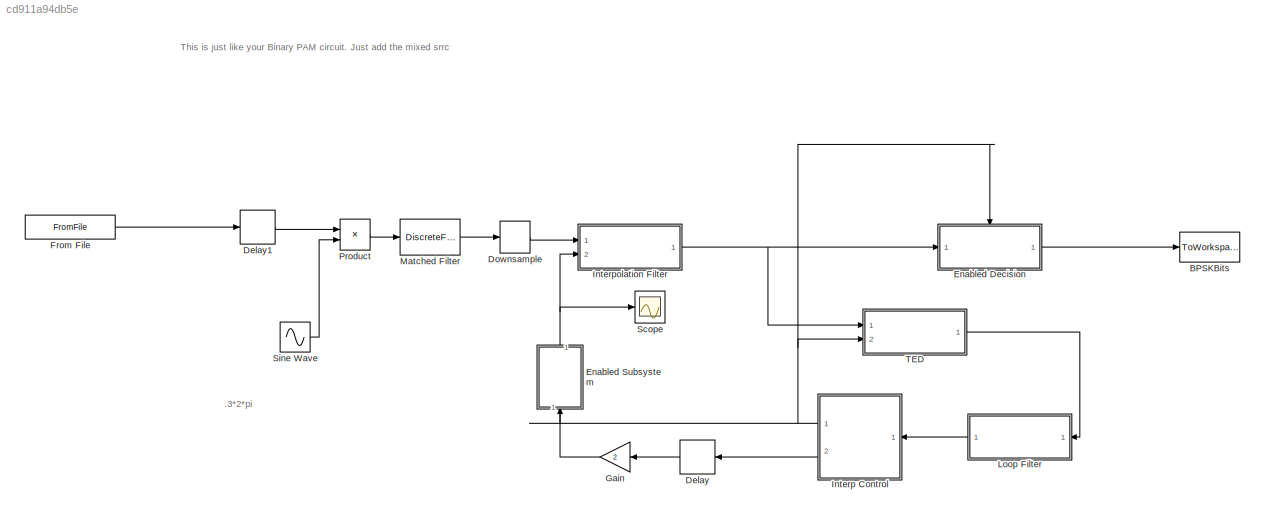
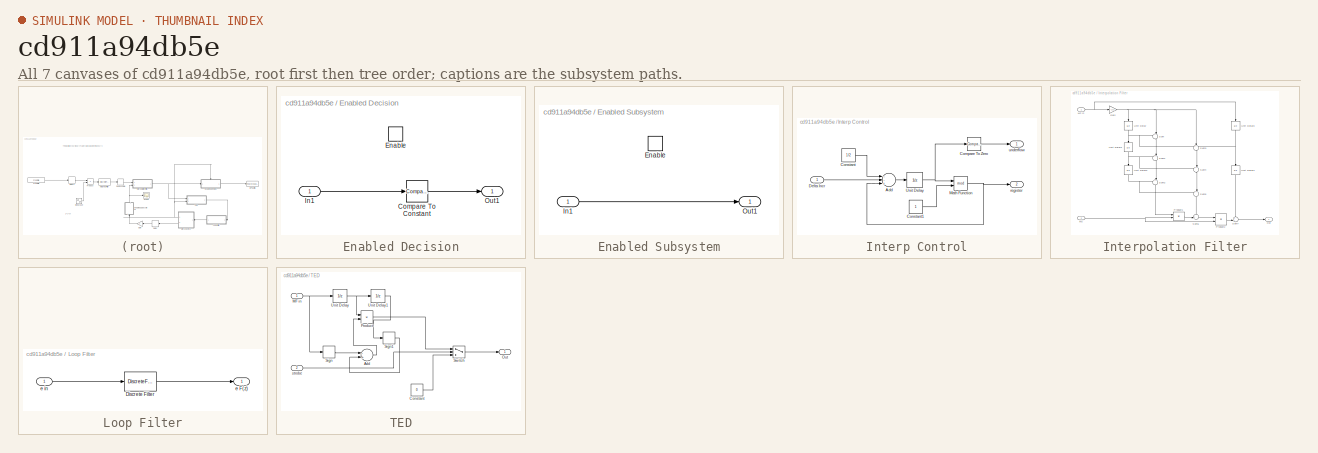
[diagram: thumbnail index - all 7 canvases of the model, root first then tree order]
MODEL slx_cd911a94db5e
KIND model
CONFIG AbsTol = auto
CONFIG FixedStep = auto
CONFIG MaxStep = auto
CONFIG MinStep = auto
CONFIG RelTol = 1e-3
CONFIG SampleTimeConstraint = Unconstrained
CONFIG Solver = VariableStepAuto
CONFIG SolverMode = Auto
CONFIG SolverName = VariableStepAuto
CONFIG StartTime = 0.0
CONFIG StopTime = (12+256+8+784)*8\n
BLOCK [ToWorkspace] BPSKBits 
  Decimation = 2
  MaxDataPoints = inf
  Ports = [1]
  SampleTime = -1
  VariableName = BPSKbits
BLOCK [Delay] Delay
  DelayLength = 1
  InputPortMap = u0
  Ports = [1, 1]
BLOCK [Delay] Delay1
  DelayLength = 0
  InputPortMap = u0
  Ports = [1, 1]
BLOCK [DownSample] Downsample
  InputProcessing = Elements as channels (sample based)
  N = 8/2
  RateOptions = Allow multirate processing
BLOCK [SubSystem] Enabled Decision
  Ports = [1, 1, 1]
  RequestExecContextInheritance = off
  TreatAsAtomicUnit = on
  Variant = off
BLOCK [Reference] Enabled Decision/Compare To Constant  REF=simulink/Logic and Bit
Operations/Compare
To Constant
  Ports = [1, 1]
  SourceBlock = simulink/Logic and Bit\nOperations/Compare\nTo Constant
  SourceType = Compare To Constant
BLOCK [EnablePort] Enabled Decision/Enable
  Ports = []
BLOCK [Inport] Enabled Decision/In1
  IconDisplay = Port number
BLOCK [Outport] Enabled Decision/Out1
  IconDisplay = Port number
BLOCK [SubSystem] Enabled Subsystem
  Ports = [1, 1, 1]
  RequestExecContextInheritance = off
  TreatAsAtomicUnit = on
  Variant = off
BLOCK [EnablePort] Enabled Subsystem/Enable
  Ports = []
BLOCK [Inport] Enabled Subsystem/In1
  IconDisplay = Port number
BLOCK [Outport] Enabled Subsystem/Out1
  IconDisplay = Port number
BLOCK [FromFile] From File
  FileName = bpsktrdata.mat
  SampleTime = 1
BLOCK [Gain] Gain
  Gain = 2
  OutDataTypeStr = Inherit: Inherit via internal rule
  ParamDataTypeStr = Inherit: Inherit via internal rule
  SaturateOnIntegerOverflow = off
BLOCK [SubSystem] Interp Control
  Ports = [1, 2]
  RequestExecContextInheritance = off
  Variant = off
BLOCK [Sum] Interp Control/Add
  InputSameDT = off
  Inputs = --+
  OutDataTypeStr = Inherit: Inherit via internal rule
  Ports = [3, 1]
  SaturateOnIntegerOverflow = off
BLOCK [Reference] Interp Control/Compare To Zero  REF=simulink/Logic and Bit
Operations/Compare
To Zero
  Ports = [1, 1]
  SourceBlock = simulink/Logic and Bit\nOperations/Compare\nTo Zero
  SourceType = Compare To Zero
BLOCK [Constant] Interp Control/Constant
  Value = 1/2
BLOCK [Constant] Interp Control/Constant1
BLOCK [Inport] Interp Control/Delta Incr
  IconDisplay = Port number
BLOCK [Math] Interp Control/Math Function
  Operator = mod
  Ports = [2, 1]
BLOCK [UnitDelay] Interp Control/Unit Delay
  InputProcessing = Elements as channels (sample based)
  SampleTime = -1
BLOCK [Outport] Interp Control/register
  IconDisplay = Port number
  Port = 2
BLOCK [Outport] Interp Control/underflow
  IconDisplay = Port number
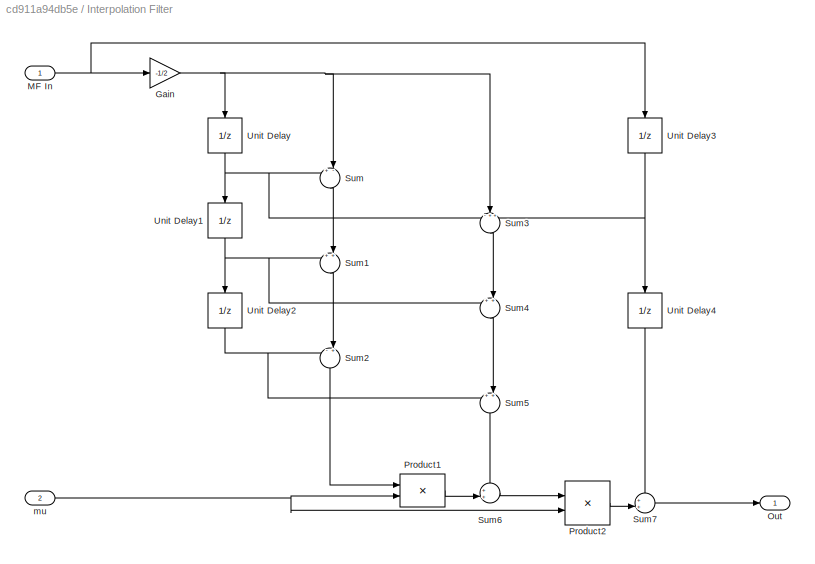
BLOCK [SubSystem] Interpolation Filter
  Ports = [2, 1]
  RequestExecContextInheritance = off
  Variant = off
BLOCK [Gain] Interpolation Filter/Gain
  Gain = -1/2
  OutDataTypeStr = Inherit: Inherit via internal rule
  ParamDataTypeStr = Inherit: Inherit via internal rule
  SaturateOnIntegerOverflow = off
BLOCK [Inport] Interpolation Filter/MF In
  IconDisplay = Port number
BLOCK [Outport] Interpolation Filter/Out
  IconDisplay = Port number
BLOCK [Product] Interpolation Filter/Product1
  Ports = [2, 1]
  RndMeth = Floor
BLOCK [Product] Interpolation Filter/Product2
  Ports = [2, 1]
  RndMeth = Floor
BLOCK [Sum] Interpolation Filter/Sum
  IconShape = round
  Inputs = +-|
  Ports = [2, 1]
BLOCK [Sum] Interpolation Filter/Sum1
  IconShape = round
  Inputs = ++|
  Ports = [2, 1]
BLOCK [Sum] Interpolation Filter/Sum2
  IconShape = round
  Inputs = -+|
  Ports = [2, 1]
BLOCK [Sum] Interpolation Filter/Sum3
  IconShape = round
  Inputs = -++
  Ports = [3, 1]
BLOCK [Sum] Interpolation Filter/Sum4
  IconShape = round
  Inputs = ++|
  Ports = [2, 1]
BLOCK [Sum] Interpolation Filter/Sum5
  IconShape = round
  Inputs = ++|
  Ports = [2, 1]
BLOCK [Sum] Interpolation Filter/Sum6
  IconShape = round
  Inputs = ++|
  Ports = [2, 1]
BLOCK [Sum] Interpolation Filter/Sum7
  IconShape = round
  Inputs = ++|
  Ports = [2, 1]
BLOCK [UnitDelay] Interpolation Filter/Unit Delay
  InputProcessing = Elements as channels (sample based)
  SampleTime = -1
BLOCK [UnitDelay] Interpolation Filter/Unit Delay1
  InputProcessing = Elements as channels (sample based)
  SampleTime = -1
BLOCK [UnitDelay] Interpolation Filter/Unit Delay2
  InputProcessing = Elements as channels (sample based)
  SampleTime = -1
BLOCK [UnitDelay] Interpolation Filter/Unit Delay3
  InputProcessing = Elements as channels (sample based)
  SampleTime = -1
BLOCK [UnitDelay] Interpolation Filter/Unit Delay4
  InputProcessing = Elements as channels (sample based)
  SampleTime = -1
BLOCK [Inport] Interpolation Filter/mu
  IconDisplay = Port number
  Port = 2
BLOCK [SubSystem] Loop Filter
  Ports = [1, 1]
  RequestExecContextInheritance = off
  Variant = off
BLOCK [DiscreteFilter] Loop Filter/Discrete Filter
  Denominator = [1 -1]
  InputPortMap = u0
  Numerator = [(K1+K2) -K1]
  Ports = [1, 1]
BLOCK [Outport] Loop Filter/e F(z)
  IconDisplay = Port number
BLOCK [Inport] Loop Filter/e in
  IconDisplay = Port number
BLOCK [DiscreteFilter] Matched Filter
  Denominator = [1]
  InputPortMap = u0
  Numerator = rcosine(1,8,'sqrt/fir', 0.5, 6)
  Ports = [1, 1]
  SampleTime = 1
BLOCK [Product] Product
  InputSameDT = off
  OutDataTypeStr = Inherit: Inherit via internal rule
  Ports = [2, 1]
  RndMeth = Floor
  SaturateOnIntegerOverflow = off
BLOCK [Scope] Scope
  Ports = [1]
  ScopeSpecificationString = Simulink.scopes.TimeScopeBlockCfg('CurrentConfiguration', extmgr.ConfigurationSet(extmgr.Configuration('Core','General UI',true),extmgr.Configuration('Core','Source UI',true),extmgr.Configuration('Sources','WiredSimulink',true),extmgr.Configuration('Visuals','Time Domain',true,'SerializedDisplays',{struct('MinYLimReal','-0.125','MaxYLimReal','1.12501','YLabelReal','','MinYLimMag','0.00000','MaxYLi...<+1363ch>
BLOCK [Sin] Sine Wave
  Amplitude = sqrt(2)
  Frequency = .3*2*pi
  Phase = pi/2
  Ports = [0, 1]
  SampleTime = 1
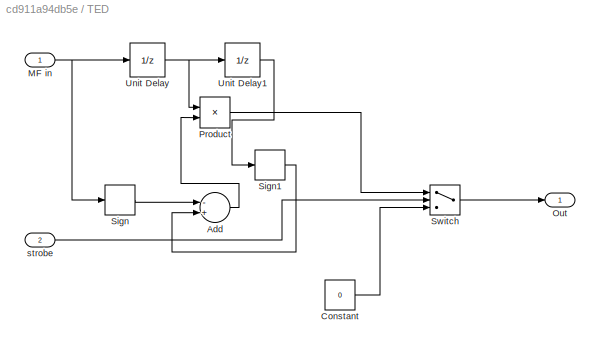
BLOCK [SubSystem] TED
  Ports = [2, 1]
  RequestExecContextInheritance = off
  Variant = off
BLOCK [Sum] TED/Add
  InputSameDT = off
  Inputs = -+
  OutDataTypeStr = Inherit: Inherit via internal rule
  Ports = [2, 1]
  SaturateOnIntegerOverflow = off
BLOCK [Constant] TED/Constant
  Value = 0
BLOCK [Inport] TED/MF in
  IconDisplay = Port number
BLOCK [Outport] TED/Out
  IconDisplay = Port number
BLOCK [Product] TED/Product
  InputSameDT = off
  OutDataTypeStr = Inherit: Inherit via internal rule
  Ports = [2, 1]
  RndMeth = Floor
  SaturateOnIntegerOverflow = off
BLOCK [Signum] TED/Sign
BLOCK [Signum] TED/Sign1
BLOCK [Switch] TED/Switch
  InputSameDT = off
  Threshold = 0.5
BLOCK [UnitDelay] TED/Unit Delay
  InputProcessing = Elements as channels (sample based)
  SampleTime = -1
BLOCK [UnitDelay] TED/Unit Delay1
  InputProcessing = Elements as channels (sample based)
  SampleTime = -1
BLOCK [Inport] TED/strobe
  IconDisplay = Port number
  Port = 2
ANNOTATION (root): .3*2*pi
ANNOTATION (root): This is just like your Binary PAM circuit. Just add the mixed srrc
LINE Delay1:1 -> Product:1
LINE Delay:1 -> Gain:1
LINE Downsample:1 -> Interpolation Filter:1
LINE Enabled Decision/Compare To Constant:1 -> Enabled Decision/Out1:1
LINE Enabled Decision/In1:1 -> Enabled Decision/Compare To Constant:1
LINE Enabled Decision:1 -> BPSKBits :1
LINE Enabled Subsystem/In1:1 -> Enabled Subsystem/Out1:1
NET Enabled Subsystem:1 -> Interpolation Filter:2, Scope:1
LINE From File:1 -> Delay1:1
LINE Gain:1 -> Enabled Subsystem:1
LINE Interp Control/Add:1 -> Interp Control/Unit Delay:1
LINE Interp Control/Compare To Zero:1 -> Interp Control/underflow:1
LINE Interp Control/Constant1:1 -> Interp Control/Math Function:2
LINE Interp Control/Constant:1 -> Interp Control/Add:1
LINE Interp Control/Delta Incr:1 -> Interp Control/Add:2
NET Interp Control/Math Function:1 -> Interp Control/Add:3, Interp Control/register:1
NET Interp Control/Unit Delay:1 -> Interp Control/Compare To Zero:1, Interp Control/Math Function:1
NET Interp Control:1 -> Enabled Decision:enable, Enabled Subsystem:enable, TED:2
LINE Interp Control:2 -> Delay:1
NET Interpolation Filter/Gain:1 -> Interpolation Filter/Sum3:2, Interpolation Filter/Sum:2, Interpolation Filter/Unit Delay:1
NET Interpolation Filter/MF In:1 -> Interpolation Filter/Gain:1, Interpolation Filter/Unit Delay3:1
LINE Interpolation Filter/Product1:1 -> Interpolation Filter/Sum6:2
LINE Interpolation Filter/Product2:1 -> Interpolation Filter/Sum7:2
LINE Interpolation Filter/Sum1:1 -> Interpolation Filter/Sum2:2
LINE Interpolation Filter/Sum2:1 -> Interpolation Filter/Product1:1
LINE Interpolation Filter/Sum3:1 -> Interpolation Filter/Sum4:2
LINE Interpolation Filter/Sum4:1 -> Interpolation Filter/Sum5:2
LINE Interpolation Filter/Sum5:1 -> Interpolation Filter/Sum6:1
LINE Interpolation Filter/Sum6:1 -> Interpolation Filter/Product2:1
LINE Interpolation Filter/Sum7:1 -> Interpolation Filter/Out:1
LINE Interpolation Filter/Sum:1 -> Interpolation Filter/Sum1:2
NET Interpolation Filter/Unit Delay1:1 -> Interpolation Filter/Sum1:1, Interpolation Filter/Sum4:1, Interpolation Filter/Unit Delay2:1
NET Interpolation Filter/Unit Delay2:1 -> Interpolation Filter/Sum2:1, Interpolation Filter/Sum5:1
NET Interpolation Filter/Unit Delay3:1 -> Interpolation Filter/Sum3:3, Interpolation Filter/Unit Delay4:1
LINE Interpolation Filter/Unit Delay4:1 -> Interpolation Filter/Sum7:1
NET Interpolation Filter/Unit Delay:1 -> Interpolation Filter/Sum3:1, Interpolation Filter/Sum:1, Interpolation Filter/Unit Delay1:1
NET Interpolation Filter/mu:1 -> Interpolation Filter/Product1:2, Interpolation Filter/Product2:2
NET Interpolation Filter:1 -> Enabled Decision:1, TED:1
LINE Loop Filter/Discrete Filter:1 -> Loop Filter/e F(z):1
LINE Loop Filter/e in:1 -> Loop Filter/Discrete Filter:1
LINE Loop Filter:1 -> Interp Control:1
LINE Matched Filter:1 -> Downsample:1
LINE Product:1 -> Matched Filter:1
LINE Sine Wave:1 -> Product:2
LINE TED/Add:1 -> TED/Product:2
LINE TED/Constant:1 -> TED/Switch:3
NET TED/MF in:1 -> TED/Sign:1, TED/Unit Delay:1
LINE TED/Product:1 -> TED/Switch:1
LINE TED/Sign1:1 -> TED/Add:2
LINE TED/Sign:1 -> TED/Add:1
LINE TED/Switch:1 -> TED/Out:1
LINE TED/Unit Delay1:1 -> TED/Sign1:1
NET TED/Unit Delay:1 -> TED/Product:1, TED/Unit Delay1:1
LINE TED/strobe:1 -> TED/Switch:2
LINE TED:1 -> Loop Filter:1
note: NET lines group one-source signal fan-out (src -> all destinations, sorted); 1:1 wires keep LINE
